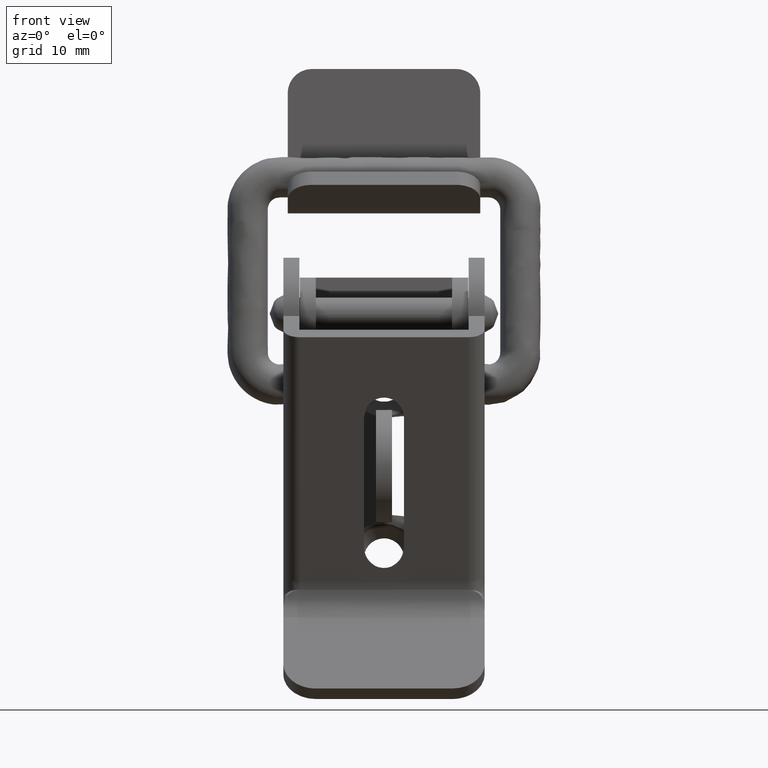
[diagram: clean part render]
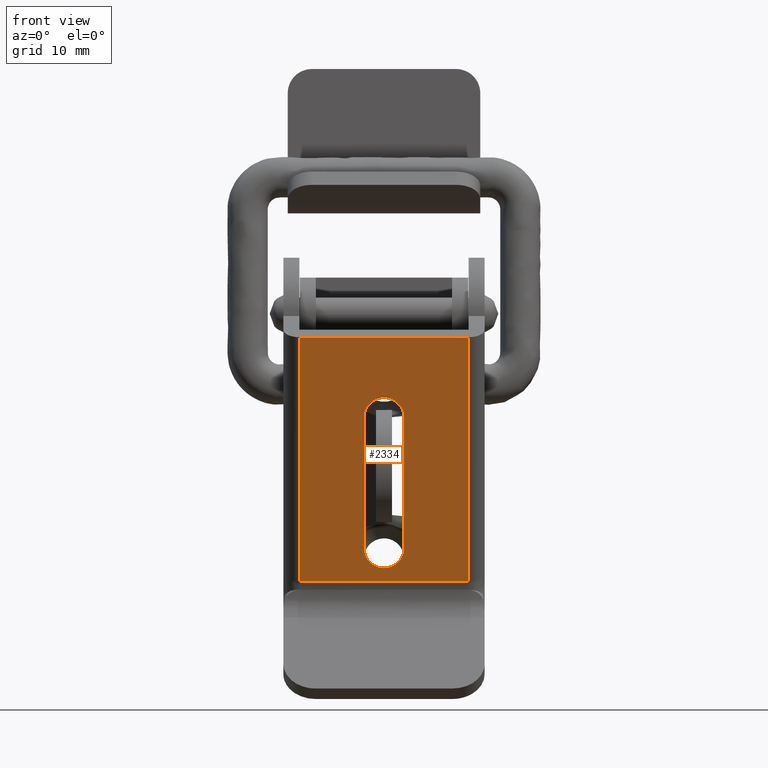
[diagram: same view with one face highlighted and labeled with its STEP entity id]
A machine part, front view. The second image highlights one B-rep face of the part: STEP entity #2334.
In plain terms, the highlighted face is a freeform B-spline surface patch.
Its self-contained STEP definition (entity closure, byte-faithful):
#1189=CARTESIAN_POINT('',(-10.747038325892300,2.500000000000000,-29.953554999999898));
#1190=VERTEX_POINT('',#1189);
#1213=CARTESIAN_POINT('',(-10.747038325892300,-2.500000000000000,-29.953554999999898));
#1214=VERTEX_POINT('',#1213);
#1220=CARTESIAN_POINT('',(-10.747038325892300,2.500000000000000,-29.953554999999898));
#1221=CARTESIAN_POINT('',(-12.061739054881279,2.500000000000000,-27.453554999999891));
#1222=CARTESIAN_POINT('',(-12.061739054881279,6.123032E-016,-27.453554999999898));
#1223=CARTESIAN_POINT('',(-12.061739054881279,-2.500000000000000,-27.453554999999891));
#1224=CARTESIAN_POINT('',(-10.747038325892300,-2.500000000000000,-29.953554999999898));
#1232=(BOUNDED_CURVE()B_SPLINE_CURVE(2,(#1220,#1221,#1222,#1223,#1224),.UNSPECIFIED.,.F.,.U.)B_SPLINE_CURVE_WITH_KNOTS((3,2,3),(0.0,0.500000000000000,1.0),.UNSPECIFIED.)CURVE()GEOMETRIC_REPRESENTATION_ITEM()RATIONAL_B_SPLINE_CURVE((1.0,0.707106781186547,1.0,0.707106781186547,1.0))REPRESENTATION_ITEM(''));
#1233=EDGE_CURVE('',#1190,#1214,#1232,.T.);
#1251=CARTESIAN_POINT('',(-2.205770037720470,-2.499999999999975,-46.195404000000003));
#1252=VERTEX_POINT('',#1251);
#1258=CARTESIAN_POINT('',(-10.747038325892300,-2.500000000000000,-29.953554999999898));
#1259=CARTESIAN_POINT('',(-2.205770037720470,-2.499999999999975,-46.195404000000003));
#1260=QUASI_UNIFORM_CURVE('',1,(#1258,#1259),.UNSPECIFIED.,.F.,.U.);
#1261=EDGE_CURVE('',#1214,#1252,#1260,.T.);
#1302=CARTESIAN_POINT('',(-2.205770037720710,2.500000000000000,-46.195403999999897));
#1303=VERTEX_POINT('',#1302);
#1309=CARTESIAN_POINT('',(-2.205770037720615,-2.500000000000000,-46.195404000000082));
#1310=CARTESIAN_POINT('',(-0.891069308731731,-2.500000000000000,-48.695403999999904));
#1311=CARTESIAN_POINT('',(-0.891069308731731,9.073214E-014,-48.695403999999897));
#1312=CARTESIAN_POINT('',(-0.891069308731731,2.500000000000000,-48.695403999999904));
#1313=CARTESIAN_POINT('',(-2.205770037720710,2.500000000000000,-46.195403999999897));
#1321=(BOUNDED_CURVE()B_SPLINE_CURVE(2,(#1309,#1310,#1311,#1312,#1313),.UNSPECIFIED.,.F.,.U.)B_SPLINE_CURVE_WITH_KNOTS((3,2,3),(0.0,0.500000000000000,1.0),.UNSPECIFIED.)CURVE()GEOMETRIC_REPRESENTATION_ITEM()RATIONAL_B_SPLINE_CURVE((1.0,0.707106781186517,1.0,0.707106781186517,1.0))REPRESENTATION_ITEM(''));
#1322=EDGE_CURVE('',#1252,#1303,#1321,.T.);
#1339=CARTESIAN_POINT('',(-2.205770037720710,2.500000000000000,-46.195403999999897));
#1340=CARTESIAN_POINT('',(-10.747038325892300,2.500000000000000,-29.953554999999898));
#1341=QUASI_UNIFORM_CURVE('',1,(#1339,#1340),.UNSPECIFIED.,.F.,.U.);
#1342=EDGE_CURVE('',#1303,#1190,#1341,.T.);
#1860=CARTESIAN_POINT('',(-16.018018000000001,-10.550000000000001,-19.930399999999999));
#1861=VERTEX_POINT('',#1860);
#1877=CARTESIAN_POINT('',(0.005513279829700,-10.550000000000001,-50.400321645498600));
#1878=VERTEX_POINT('',#1877);
#1879=CARTESIAN_POINT('',(0.005513279829700,-10.550000000000001,-50.400321645498600));
#1880=CARTESIAN_POINT('',(-16.018018000000001,-10.550000000000001,-19.930399999999999));
#1881=QUASI_UNIFORM_CURVE('',1,(#1879,#1880),.UNSPECIFIED.,.F.,.U.);
#1882=EDGE_CURVE('',#1878,#1861,#1881,.T.);
#1986=CARTESIAN_POINT('',(-16.018018000000001,10.550000000000001,-19.930399999999999));
#1987=VERTEX_POINT('',#1986);
#2008=CARTESIAN_POINT('',(0.005513279829700,10.550000000000001,-50.400321645498600));
#2009=VERTEX_POINT('',#2008);
#2023=CARTESIAN_POINT('',(-16.018018000000001,10.550000000000001,-19.930399999999999));
#2024=CARTESIAN_POINT('',(0.005513279829700,10.550000000000001,-50.400321645498600));
#2025=QUASI_UNIFORM_CURVE('',1,(#2023,#2024),.UNSPECIFIED.,.F.,.U.);
#2026=EDGE_CURVE('',#1987,#2009,#2025,.T.);
#2302=CARTESIAN_POINT('',(0.005513279829700,-10.550000000000001,-50.400321645498600));
#2303=CARTESIAN_POINT('',(0.005513279829700,10.550000000000001,-50.400321645498600));
#2304=QUASI_UNIFORM_CURVE('',1,(#2302,#2303),.UNSPECIFIED.,.F.,.U.);
#2305=EDGE_CURVE('',#1878,#2009,#2304,.T.);
#2313=CARTESIAN_POINT('',(-16.818393205953338,-11.603945157175810,-18.408427758893790));
#2314=CARTESIAN_POINT('',(0.805889058829128,-11.603945157175810,-51.922294976294147));
#2315=CARTESIAN_POINT('',(-16.818393205953338,11.603945534473210,-18.408427758893790));
#2316=CARTESIAN_POINT('',(0.805889058829128,11.603945534473210,-51.922294976294147));
#2317=B_SPLINE_SURFACE_WITH_KNOTS('',1,1,((#2313,#2315),(#2314,#2316)),.UNSPECIFIED.,.F.,.F.,.U.,(2,2),(2,2),(0.0,37.865480601918527),(0.0,23.207890691649020),.UNSPECIFIED.);
#2318=CARTESIAN_POINT('',(-16.018018000000001,-10.550000000000001,-19.930399999999999));
#2319=CARTESIAN_POINT('',(-16.018018000000001,10.550000000000001,-19.930399999999999));
#2320=QUASI_UNIFORM_CURVE('',1,(#2318,#2319),.UNSPECIFIED.,.F.,.U.);
#2321=EDGE_CURVE('',#1861,#1987,#2320,.T.);
#2322=ORIENTED_EDGE('',*,*,#2321,.T.);
#2323=ORIENTED_EDGE('',*,*,#2026,.T.);
#2324=ORIENTED_EDGE('',*,*,#2305,.F.);
#2325=ORIENTED_EDGE('',*,*,#1882,.T.);
#2326=EDGE_LOOP('',(#2322,#2323,#2324,#2325));
#2327=FACE_OUTER_BOUND('',#2326,.T.);
#2328=ORIENTED_EDGE('',*,*,#1322,.T.);
#2329=ORIENTED_EDGE('',*,*,#1342,.T.);
#2330=ORIENTED_EDGE('',*,*,#1233,.T.);
#2331=ORIENTED_EDGE('',*,*,#1261,.T.);
#2332=EDGE_LOOP('',(#2328,#2329,#2330,#2331));
#2333=FACE_BOUND('',#2332,.T.);
#2334=ADVANCED_FACE('',(#2327,#2333),#2317,.F.);